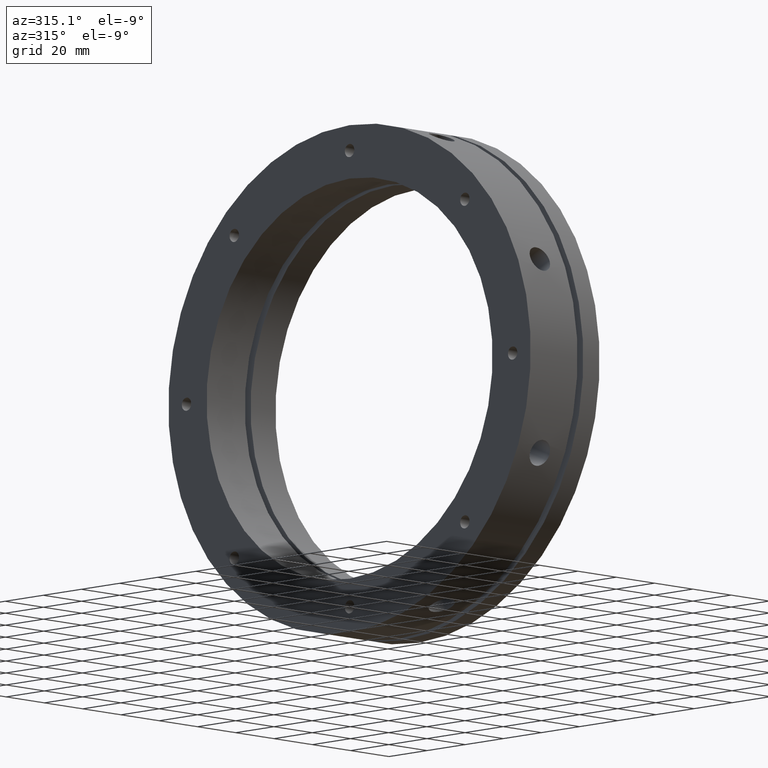
[diagram: clean part render]
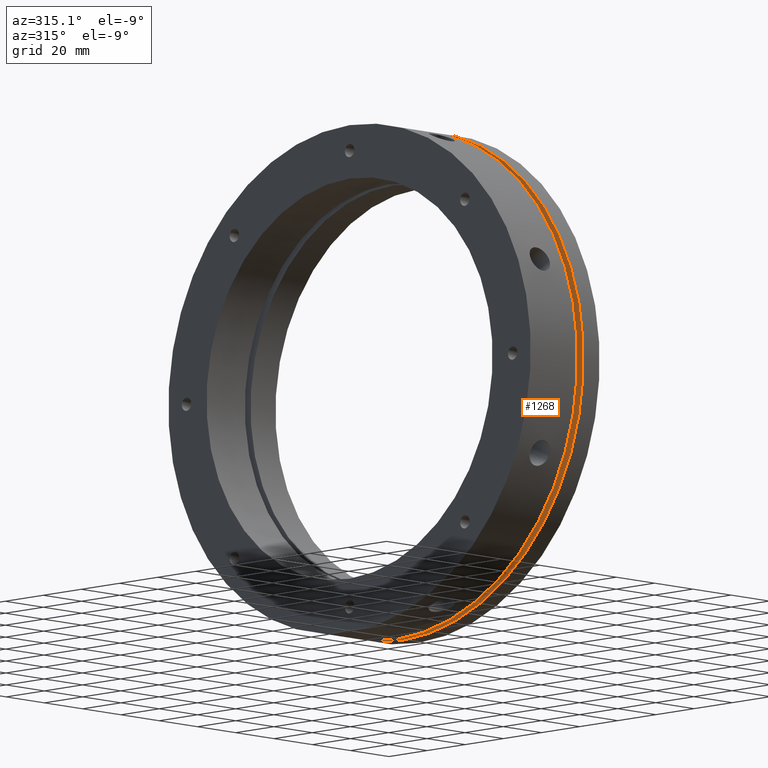
[diagram: same view with one face highlighted and labeled with its STEP entity id]
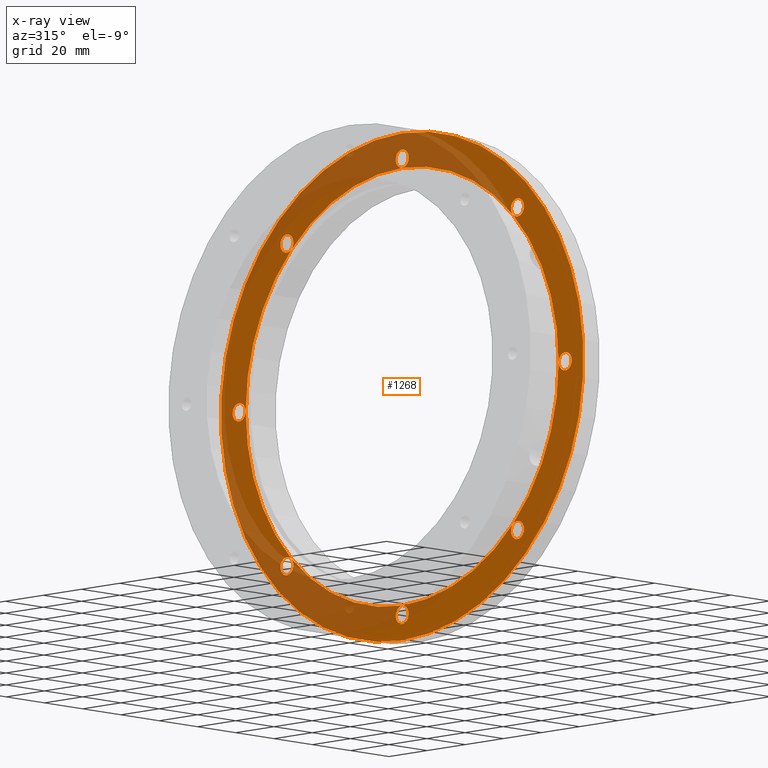
[diagram: x-ray of the same camera — body ghosted, the highlighted face saturated]
A machine part, auxiliary view. The second image highlights one B-rep face of the part: STEP entity #1268.
The next image is the same camera in x-ray: the body ghosted, the highlighted face saturated — about 36% of this face is hidden behind the body in this view.
In plain terms, the highlighted planar face has unit normal (1, 0, 0).
Its self-contained STEP definition (entity closure, byte-faithful):
#34 = FACE_OUTER_BOUND ( 'NONE', #1393, .T. ) ;
#35 = FACE_BOUND ( 'NONE', #3607, .T. ) ;
#36 = FACE_BOUND ( 'NONE', #3630, .T. ) ;
#37 = FACE_BOUND ( 'NONE', #3704, .T. ) ;
#38 = FACE_BOUND ( 'NONE', #3709, .T. ) ;
#39 = FACE_BOUND ( 'NONE', #3606, .T. ) ;
#40 = FACE_BOUND ( 'NONE', #3759, .T. ) ;
#41 = FACE_BOUND ( 'NONE', #3605, .T. ) ;
#42 = FACE_BOUND ( 'NONE', #3772, .T. ) ;
#43 = FACE_BOUND ( 'NONE', #3750, .T. ) ;
#448 = CARTESIAN_POINT ( 'NONE',  ( 27.49999999999997900, -60.45762979144981100, 57.05762979144982000 ) ) ;
#464 = CARTESIAN_POINT ( 'NONE',  ( 27.49999999999997900, -8.881783999999999800E-015, -88.90000000000000600 ) ) ;
#480 = CARTESIAN_POINT ( 'NONE',  ( 27.49999999999997900, -8.465404088289900900E-015, -82.10000000000000900 ) ) ;
#497 = CARTESIAN_POINT ( 'NONE',  ( 27.49999999999997900, 0.0000000000000000000, 82.00000000000001400 ) ) ;
#500 = CARTESIAN_POINT ( 'NONE',  ( 27.49999999999997900, 4.163799117101000100E-016, 88.90000000000000600 ) ) ;
#505 = CARTESIAN_POINT ( 'NONE',  ( 27.49999999999997900, 0.0000000000000000000, 82.10000000000000900 ) ) ;
#511 = CARTESIAN_POINT ( 'NONE',  ( 27.49999999999997900, -60.45762979144981800, -57.05762979144981300 ) ) ;
#513 = CARTESIAN_POINT ( 'NONE',  ( 27.49999999999997900, 60.45762979144983300, 63.85762979144979600 ) ) ;
#516 = CARTESIAN_POINT ( 'NONE',  ( 27.49999999999997900, -85.50000000000000000, 3.399999999999999900 ) ) ;
#517 = CARTESIAN_POINT ( 'NONE',  ( 27.49999999999997900, 60.45762979144980400, -63.85762979144982400 ) ) ;
#519 = CARTESIAN_POINT ( 'NONE',  ( 27.49999999999997900, 1.004210375300829800E-014, -82.00000000000001400 ) ) ;
#520 = CARTESIAN_POINT ( 'NONE',  ( 27.49999999999997900, 0.0000000000000000000, -95.00000000000000000 ) ) ;
#529 = CARTESIAN_POINT ( 'NONE',  ( 27.49999999999997900, 1.163414459189985600E-014, 95.00000000000000000 ) ) ;
#550 = CARTESIAN_POINT ( 'NONE',  ( 27.49999999999997900, 85.50000000000000000, 3.399999999999991000 ) ) ;
#571 = CARTESIAN_POINT ( 'NONE',  ( 27.49999999999997900, 60.45762979144980400, -57.05762979144982700 ) ) ;
#598 = CARTESIAN_POINT ( 'NONE',  ( 27.49999999999997900, 60.45762979144983300, 57.05762979144979100 ) ) ;
#617 = CARTESIAN_POINT ( 'NONE',  ( 27.49999999999997900, 85.50000000000000000, -3.400000000000008300 ) ) ;
#643 = CARTESIAN_POINT ( 'NONE',  ( 27.49999999999997900, -85.50000000000000000, -3.399999999999999900 ) ) ;
#644 = CARTESIAN_POINT ( 'NONE',  ( 27.49999999999997900, -60.45762979144981100, 63.85762979144982400 ) ) ;
#646 = CARTESIAN_POINT ( 'NONE',  ( 27.49999999999997900, -60.45762979144981800, -63.85762979144982400 ) ) ;
#650 = CARTESIAN_POINT ( 'NONE',  ( 27.49999999999997900, 85.50000000000000000, -8.881783999999999800E-015 ) ) ;
#651 = DIRECTION ( 'NONE',  ( -1.000000000000000000, -0.0000000000000000000, -0.0000000000000000000 ) ) ;
#652 = DIRECTION ( 'NONE',  ( 0.0000000000000000000, 0.0000000000000000000, -1.000000000000000000 ) ) ;
#669 = CARTESIAN_POINT ( 'NONE',  ( 27.49999999999997900, 60.45762979144983300, 60.45762979144979000 ) ) ;
#670 = DIRECTION ( 'NONE',  ( -1.000000000000000000, -0.0000000000000000000, -0.0000000000000000000 ) ) ;
#671 = DIRECTION ( 'NONE',  ( 0.0000000000000000000, 0.0000000000000000000, -1.000000000000000000 ) ) ;
#672 = CARTESIAN_POINT ( 'NONE',  ( 27.49999999999997900, -8.881783999999999800E-015, -85.50000000000000000 ) ) ;
#673 = DIRECTION ( 'NONE',  ( -1.000000000000000000, -0.0000000000000000000, -0.0000000000000000000 ) ) ;
#674 = DIRECTION ( 'NONE',  ( 0.0000000000000000000, 0.0000000000000000000, -1.000000000000000000 ) ) ;
#696 = CARTESIAN_POINT ( 'NONE',  ( 27.49999999999997900, -60.45762979144981800, -60.45762979144981100 ) ) ;
#697 = DIRECTION ( 'NONE',  ( -1.000000000000000000, -0.0000000000000000000, -0.0000000000000000000 ) ) ;
#698 = DIRECTION ( 'NONE',  ( 0.0000000000000000000, 0.0000000000000000000, -1.000000000000000000 ) ) ;
#851 = CARTESIAN_POINT ( 'NONE',  ( 27.49999999999997900, 0.0000000000000000000, 0.0000000000000000000 ) ) ;
#852 = DIRECTION ( 'NONE',  ( -1.000000000000000000, 0.0000000000000000000, 0.0000000000000000000 ) ) ;
#853 = DIRECTION ( 'NONE',  ( 0.0000000000000000000, 0.0000000000000000000, 1.000000000000000000 ) ) ;
#918 = CARTESIAN_POINT ( 'NONE',  ( 27.49999999999997900, 60.45762979144980400, -60.45762979144982600 ) ) ;
#919 = DIRECTION ( 'NONE',  ( -1.000000000000000000, -0.0000000000000000000, -0.0000000000000000000 ) ) ;
#920 = DIRECTION ( 'NONE',  ( 0.0000000000000000000, 0.0000000000000000000, -1.000000000000000000 ) ) ;
#979 = CARTESIAN_POINT ( 'NONE',  ( 27.49999999999997900, 0.0000000000000000000, 0.0000000000000000000 ) ) ;
#980 = DIRECTION ( 'NONE',  ( 1.000000000000000000, 0.0000000000000000000, 0.0000000000000000000 ) ) ;
#981 = DIRECTION ( 'NONE',  ( 0.0000000000000000000, 0.0000000000000000000, -1.000000000000000000 ) ) ;
#1003 = CARTESIAN_POINT ( 'NONE',  ( 27.49999999999997900, 0.0000000000000000000, 85.50000000000000000 ) ) ;
#1004 = DIRECTION ( 'NONE',  ( -1.000000000000000000, -0.0000000000000000000, -0.0000000000000000000 ) ) ;
#1005 = DIRECTION ( 'NONE',  ( 0.0000000000000000000, 0.0000000000000000000, -1.000000000000000000 ) ) ;
#1019 = CARTESIAN_POINT ( 'NONE',  ( 27.49999999999997900, -60.45762979144981100, 60.45762979144981800 ) ) ;
#1020 = DIRECTION ( 'NONE',  ( -1.000000000000000000, -0.0000000000000000000, -0.0000000000000000000 ) ) ;
#1021 = DIRECTION ( 'NONE',  ( 0.0000000000000000000, 0.0000000000000000000, -1.000000000000000000 ) ) ;
#1130 = CARTESIAN_POINT ( 'NONE',  ( 27.49999999999997900, -85.50000000000000000, 0.0000000000000000000 ) ) ;
#1131 = DIRECTION ( 'NONE',  ( -1.000000000000000000, -0.0000000000000000000, -0.0000000000000000000 ) ) ;
#1132 = DIRECTION ( 'NONE',  ( 0.0000000000000000000, 0.0000000000000000000, -1.000000000000000000 ) ) ;
#1138 = CIRCLE ( 'NONE', #5674, 3.399999999999999900 ) ;
#1148 = CIRCLE ( 'NONE', #5689, 3.400000000000000400 ) ;
#1165 = CIRCLE ( 'NONE', #1735, 95.00000000000000000 ) ;
#1268 = ADVANCED_FACE ( 'NONE', ( #43, #39, #42, #40, #41, #38, #37, #36, #35, #34 ), #5870, .F. ) ;
#1390 = VERTEX_POINT ( 'NONE', #448 ) ;
#1393 = EDGE_LOOP ( 'NONE', ( #4268, #4267 ) ) ;
#1401 = VERTEX_POINT ( 'NONE', #464 ) ;
#1426 = VERTEX_POINT ( 'NONE', #480 ) ;
#1451 = VERTEX_POINT ( 'NONE', #497 ) ;
#1459 = VERTEX_POINT ( 'NONE', #500 ) ;
#1467 = VERTEX_POINT ( 'NONE', #505 ) ;
#1473 = VERTEX_POINT ( 'NONE', #511 ) ;
#1476 = VERTEX_POINT ( 'NONE', #513 ) ;
#1494 = VERTEX_POINT ( 'NONE', #516 ) ;
#1495 = VERTEX_POINT ( 'NONE', #517 ) ;
#1499 = VERTEX_POINT ( 'NONE', #519 ) ;
#1503 = VERTEX_POINT ( 'NONE', #520 ) ;
#1530 = VERTEX_POINT ( 'NONE', #529 ) ;
#1559 = VERTEX_POINT ( 'NONE', #550 ) ;
#1580 = VERTEX_POINT ( 'NONE', #571 ) ;
#1607 = VERTEX_POINT ( 'NONE', #598 ) ;
#1626 = VERTEX_POINT ( 'NONE', #617 ) ;
#1652 = VERTEX_POINT ( 'NONE', #643 ) ;
#1653 = VERTEX_POINT ( 'NONE', #644 ) ;
#1655 = VERTEX_POINT ( 'NONE', #646 ) ;
#1671 = CIRCLE ( 'NONE', #1761, 3.400000000000007000 ) ;
#1685 = CIRCLE ( 'NONE', #1771, 3.400000000000000400 ) ;
#1686 = CIRCLE ( 'NONE', #1776, 3.400000000000000400 ) ;
#1698 = CIRCLE ( 'NONE', #5518, 3.399999999999999900 ) ;
#1729 = AXIS2_PLACEMENT_3D ( 'NONE', #851, #852, #853 ) ;
#1735 = AXIS2_PLACEMENT_3D ( 'NONE', #979, #980, #981 ) ;
#1761 = AXIS2_PLACEMENT_3D ( 'NONE', #696, #697, #698 ) ;
#1770 = AXIS2_PLACEMENT_3D ( 'NONE', #918, #919, #920 ) ;
#1771 = AXIS2_PLACEMENT_3D ( 'NONE', #672, #673, #674 ) ;
#1776 = AXIS2_PLACEMENT_3D ( 'NONE', #669, #670, #671 ) ;
#1834 = EDGE_CURVE ( 'NONE', #1626, #1559, #1698, .T. ) ;
#1841 = EDGE_CURVE ( 'NONE', #1607, #1476, #1686, .T. ) ;
#1842 = EDGE_CURVE ( 'NONE', #1401, #1426, #1685, .T. ) ;
#1852 = EDGE_CURVE ( 'NONE', #1655, #1473, #1671, .T. ) ;
#2337 = CARTESIAN_POINT ( 'NONE',  ( 27.49999999999997900, 0.0000000000000000000, 0.0000000000000000000 ) ) ;
#2338 = DIRECTION ( 'NONE',  ( 1.000000000000000000, 0.0000000000000000000, 0.0000000000000000000 ) ) ;
#2339 = DIRECTION ( 'NONE',  ( 0.0000000000000000000, 0.0000000000000000000, -1.000000000000000000 ) ) ;
#2340 = CARTESIAN_POINT ( 'NONE',  ( 27.49999999999997900, 60.45762979144983300, 60.45762979144979000 ) ) ;
#2341 = DIRECTION ( 'NONE',  ( -1.000000000000000000, -0.0000000000000000000, -0.0000000000000000000 ) ) ;
#2342 = DIRECTION ( 'NONE',  ( 0.0000000000000000000, 0.0000000000000000000, -1.000000000000000000 ) ) ;
#2343 = CARTESIAN_POINT ( 'NONE',  ( 27.49999999999997900, 85.50000000000000000, -8.881783999999999800E-015 ) ) ;
#2344 = DIRECTION ( 'NONE',  ( -1.000000000000000000, -0.0000000000000000000, -0.0000000000000000000 ) ) ;
#2345 = DIRECTION ( 'NONE',  ( 0.0000000000000000000, 0.0000000000000000000, -1.000000000000000000 ) ) ;
#2346 = CARTESIAN_POINT ( 'NONE',  ( 27.49999999999997900, 60.45762979144980400, -60.45762979144982600 ) ) ;
#2347 = DIRECTION ( 'NONE',  ( -1.000000000000000000, -0.0000000000000000000, -0.0000000000000000000 ) ) ;
#2348 = DIRECTION ( 'NONE',  ( 0.0000000000000000000, 0.0000000000000000000, -1.000000000000000000 ) ) ;
#2349 = CARTESIAN_POINT ( 'NONE',  ( 27.49999999999997900, -8.881783999999999800E-015, -85.50000000000000000 ) ) ;
#2350 = DIRECTION ( 'NONE',  ( -1.000000000000000000, -0.0000000000000000000, -0.0000000000000000000 ) ) ;
#2351 = DIRECTION ( 'NONE',  ( 0.0000000000000000000, 0.0000000000000000000, -1.000000000000000000 ) ) ;
#2352 = CARTESIAN_POINT ( 'NONE',  ( 27.49999999999997900, -60.45762979144981800, -60.45762979144981100 ) ) ;
#2353 = DIRECTION ( 'NONE',  ( -1.000000000000000000, -0.0000000000000000000, -0.0000000000000000000 ) ) ;
#2354 = DIRECTION ( 'NONE',  ( 0.0000000000000000000, 0.0000000000000000000, -1.000000000000000000 ) ) ;
#2355 = CARTESIAN_POINT ( 'NONE',  ( 27.49999999999997900, -85.50000000000000000, 0.0000000000000000000 ) ) ;
#2356 = DIRECTION ( 'NONE',  ( -1.000000000000000000, -0.0000000000000000000, -0.0000000000000000000 ) ) ;
#2357 = DIRECTION ( 'NONE',  ( 0.0000000000000000000, 0.0000000000000000000, -1.000000000000000000 ) ) ;
#2358 = CARTESIAN_POINT ( 'NONE',  ( 27.49999999999997900, -60.45762979144981100, 60.45762979144981800 ) ) ;
#2359 = DIRECTION ( 'NONE',  ( -1.000000000000000000, -0.0000000000000000000, -0.0000000000000000000 ) ) ;
#2360 = DIRECTION ( 'NONE',  ( 0.0000000000000000000, 0.0000000000000000000, -1.000000000000000000 ) ) ;
#2361 = CARTESIAN_POINT ( 'NONE',  ( 27.49999999999997900, 0.0000000000000000000, 85.50000000000000000 ) ) ;
#2362 = DIRECTION ( 'NONE',  ( -1.000000000000000000, -0.0000000000000000000, -0.0000000000000000000 ) ) ;
#2363 = DIRECTION ( 'NONE',  ( 0.0000000000000000000, 0.0000000000000000000, -1.000000000000000000 ) ) ;
#2394 = CARTESIAN_POINT ( 'NONE',  ( 27.49999999999997900, 0.0000000000000000000, 0.0000000000000000000 ) ) ;
#2395 = DIRECTION ( 'NONE',  ( -1.000000000000000000, 0.0000000000000000000, 0.0000000000000000000 ) ) ;
#2396 = DIRECTION ( 'NONE',  ( 0.0000000000000000000, 0.0000000000000000000, 1.000000000000000000 ) ) ;
#3493 = EDGE_CURVE ( 'NONE', #1451, #1499, #4138, .T. ) ;
#3520 = EDGE_CURVE ( 'NONE', #1495, #1580, #4097, .T. ) ;
#3546 = EDGE_CURVE ( 'NONE', #1503, #1530, #1165, .T. ) ;
#3556 = EDGE_CURVE ( 'NONE', #1467, #1459, #1148, .T. ) ;
#3562 = EDGE_CURVE ( 'NONE', #1390, #1653, #4781, .T. ) ;
#3605 = EDGE_LOOP ( 'NONE', ( #4278, #4277 ) ) ;
#3606 = EDGE_LOOP ( 'NONE', ( #4284, #4283 ) ) ;
#3607 = EDGE_LOOP ( 'NONE', ( #4270, #4269 ) ) ;
#3630 = EDGE_LOOP ( 'NONE', ( #4272, #4271 ) ) ;
#3704 = EDGE_LOOP ( 'NONE', ( #4274, #4273 ) ) ;
#3709 = EDGE_LOOP ( 'NONE', ( #4276, #4275 ) ) ;
#3750 = EDGE_LOOP ( 'NONE', ( #4286, #4285 ) ) ;
#3759 = EDGE_LOOP ( 'NONE', ( #4280, #4279 ) ) ;
#3772 = EDGE_LOOP ( 'NONE', ( #4282, #4281 ) ) ;
#3834 = AXIS2_PLACEMENT_3D ( 'NONE', #5868, #5866, #5873 ) ;
#3877 = EDGE_CURVE ( 'NONE', #1652, #1494, #1138, .T. ) ;
#3943 = EDGE_CURVE ( 'NONE', #1530, #1503, #4532, .T. ) ;
#3944 = EDGE_CURVE ( 'NONE', #1476, #1607, #4533, .T. ) ;
#3945 = EDGE_CURVE ( 'NONE', #1559, #1626, #4534, .T. ) ;
#3946 = EDGE_CURVE ( 'NONE', #1580, #1495, #4535, .T. ) ;
#3947 = EDGE_CURVE ( 'NONE', #1426, #1401, #4536, .T. ) ;
#3948 = EDGE_CURVE ( 'NONE', #1473, #1655, #4537, .T. ) ;
#3949 = EDGE_CURVE ( 'NONE', #1494, #1652, #4538, .T. ) ;
#3950 = EDGE_CURVE ( 'NONE', #1653, #1390, #4539, .T. ) ;
#3951 = EDGE_CURVE ( 'NONE', #1459, #1467, #4540, .T. ) ;
#3962 = EDGE_CURVE ( 'NONE', #1499, #1451, #4551, .T. ) ;
#4097 = CIRCLE ( 'NONE', #1770, 3.399999999999993200 ) ;
#4138 = CIRCLE ( 'NONE', #1729, 82.00000000000001400 ) ;
#4267 = ORIENTED_EDGE ( 'NONE', *, *, #3943, .F. ) ;
#4268 = ORIENTED_EDGE ( 'NONE', *, *, #3546, .F. ) ;
#4269 = ORIENTED_EDGE ( 'NONE', *, *, #3944, .F. ) ;
#4270 = ORIENTED_EDGE ( 'NONE', *, *, #1841, .F. ) ;
#4271 = ORIENTED_EDGE ( 'NONE', *, *, #3945, .F. ) ;
#4272 = ORIENTED_EDGE ( 'NONE', *, *, #1834, .F. ) ;
#4273 = ORIENTED_EDGE ( 'NONE', *, *, #3946, .F. ) ;
#4274 = ORIENTED_EDGE ( 'NONE', *, *, #3520, .F. ) ;
#4275 = ORIENTED_EDGE ( 'NONE', *, *, #3947, .F. ) ;
#4276 = ORIENTED_EDGE ( 'NONE', *, *, #1842, .F. ) ;
#4277 = ORIENTED_EDGE ( 'NONE', *, *, #3948, .F. ) ;
#4278 = ORIENTED_EDGE ( 'NONE', *, *, #1852, .F. ) ;
#4279 = ORIENTED_EDGE ( 'NONE', *, *, #3949, .F. ) ;
#4280 = ORIENTED_EDGE ( 'NONE', *, *, #3877, .F. ) ;
#4281 = ORIENTED_EDGE ( 'NONE', *, *, #3950, .F. ) ;
#4282 = ORIENTED_EDGE ( 'NONE', *, *, #3562, .F. ) ;
#4283 = ORIENTED_EDGE ( 'NONE', *, *, #3951, .F. ) ;
#4284 = ORIENTED_EDGE ( 'NONE', *, *, #3556, .F. ) ;
#4285 = ORIENTED_EDGE ( 'NONE', *, *, #3962, .F. ) ;
#4286 = ORIENTED_EDGE ( 'NONE', *, *, #3493, .F. ) ;
#4532 = CIRCLE ( 'NONE', #5131, 95.00000000000000000 ) ;
#4533 = CIRCLE ( 'NONE', #5130, 3.400000000000000400 ) ;
#4534 = CIRCLE ( 'NONE', #5129, 3.399999999999999900 ) ;
#4535 = CIRCLE ( 'NONE', #5128, 3.399999999999993200 ) ;
#4536 = CIRCLE ( 'NONE', #5127, 3.400000000000000400 ) ;
#4537 = CIRCLE ( 'NONE', #5126, 3.400000000000007000 ) ;
#4538 = CIRCLE ( 'NONE', #5125, 3.399999999999999900 ) ;
#4539 = CIRCLE ( 'NONE', #5124, 3.400000000000000400 ) ;
#4540 = CIRCLE ( 'NONE', #5123, 3.400000000000000400 ) ;
#4551 = CIRCLE ( 'NONE', #5112, 82.00000000000001400 ) ;
#4781 = CIRCLE ( 'NONE', #5690, 3.400000000000000400 ) ;
#5112 = AXIS2_PLACEMENT_3D ( 'NONE', #2394, #2395, #2396 ) ;
#5123 = AXIS2_PLACEMENT_3D ( 'NONE', #2361, #2362, #2363 ) ;
#5124 = AXIS2_PLACEMENT_3D ( 'NONE', #2358, #2359, #2360 ) ;
#5125 = AXIS2_PLACEMENT_3D ( 'NONE', #2355, #2356, #2357 ) ;
#5126 = AXIS2_PLACEMENT_3D ( 'NONE', #2352, #2353, #2354 ) ;
#5127 = AXIS2_PLACEMENT_3D ( 'NONE', #2349, #2350, #2351 ) ;
#5128 = AXIS2_PLACEMENT_3D ( 'NONE', #2346, #2347, #2348 ) ;
#5129 = AXIS2_PLACEMENT_3D ( 'NONE', #2343, #2344, #2345 ) ;
#5130 = AXIS2_PLACEMENT_3D ( 'NONE', #2340, #2341, #2342 ) ;
#5131 = AXIS2_PLACEMENT_3D ( 'NONE', #2337, #2338, #2339 ) ;
#5518 = AXIS2_PLACEMENT_3D ( 'NONE', #650, #651, #652 ) ;
#5674 = AXIS2_PLACEMENT_3D ( 'NONE', #1130, #1131, #1132 ) ;
#5689 = AXIS2_PLACEMENT_3D ( 'NONE', #1003, #1004, #1005 ) ;
#5690 = AXIS2_PLACEMENT_3D ( 'NONE', #1019, #1020, #1021 ) ;
#5866 = DIRECTION ( 'NONE',  ( 1.000000000000000000, -0.0000000000000000000, 0.0000000000000000000 ) ) ;
#5868 = CARTESIAN_POINT ( 'NONE',  ( 27.49999999999997900, 88.50000000000001400, 0.0000000000000000000 ) ) ;
#5870 = PLANE ( 'NONE',  #3834 ) ;
#5873 = DIRECTION ( 'NONE',  ( 0.0000000000000000000, 0.0000000000000000000, -1.000000000000000000 ) ) ;